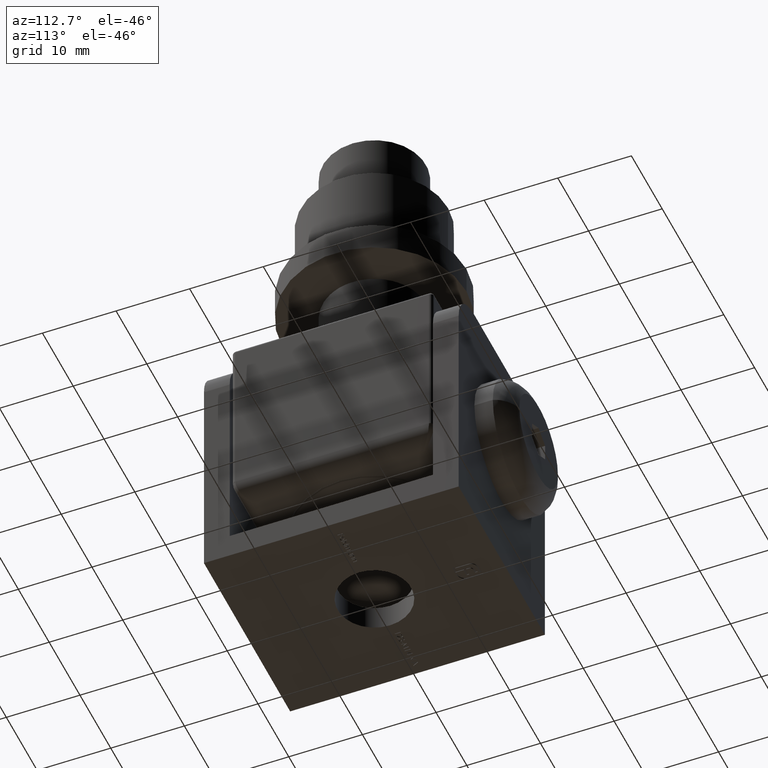
[diagram: clean part render]
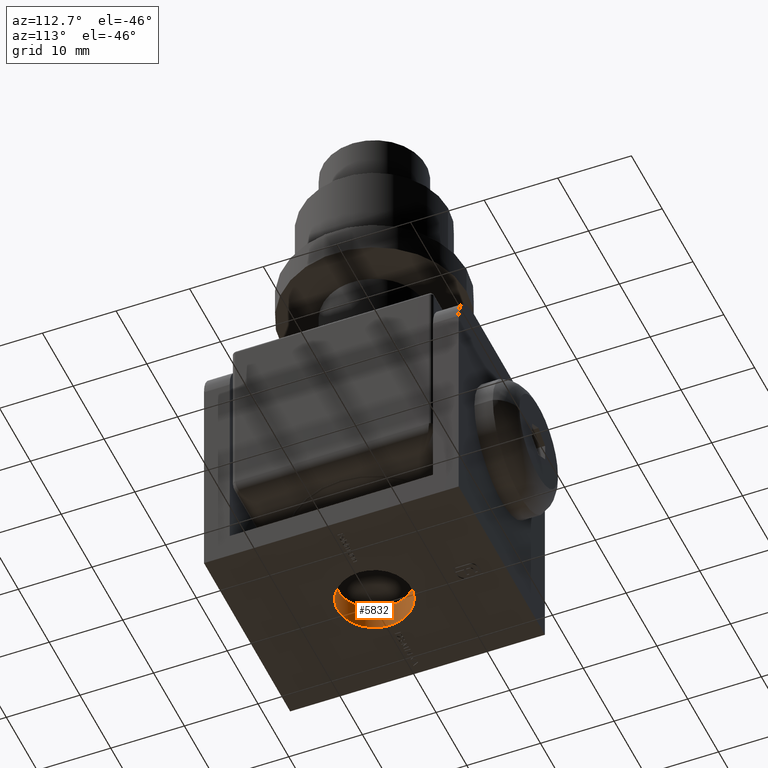
[diagram: same view with one face highlighted and labeled with its STEP entity id]
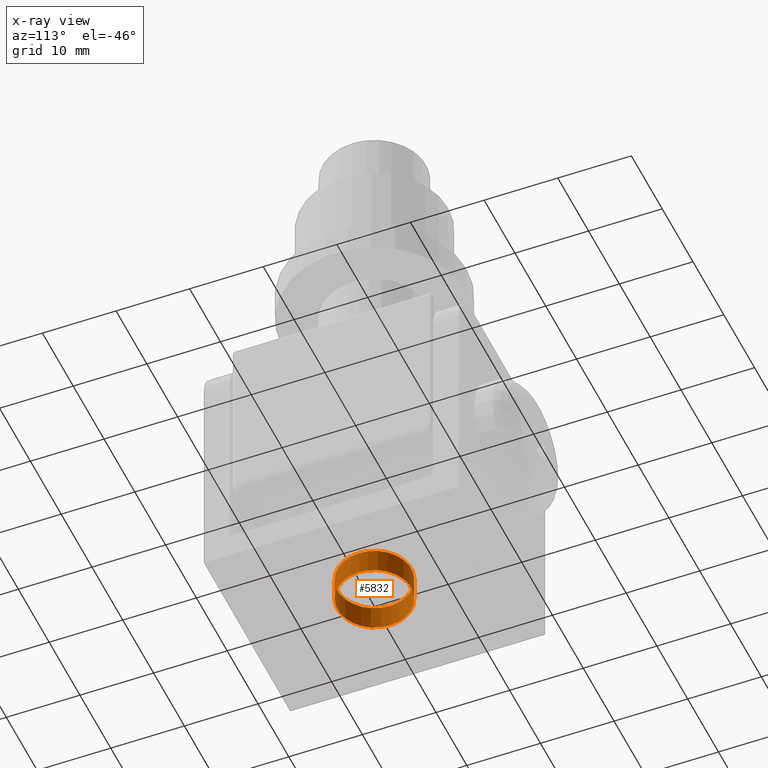
[diagram: x-ray of the same camera — body ghosted, the highlighted face saturated]
A machine part, auxiliary view. The second image highlights one B-rep face of the part: STEP entity #5832.
The next image is the same camera in x-ray: the body ghosted, the highlighted face saturated — about 0% of this face is hidden behind the body in this view.
In plain terms, the highlighted cylindrical surface (bore or boss wall) has radius 5 mm, axis along (0, 0, 1).
Its self-contained STEP definition (entity closure, byte-faithful):
#82 = FACE_OUTER_BOUND ( 'NONE', #4609, .T. ) ;
#257 = FACE_OUTER_BOUND ( 'NONE', #7663, .T. ) ;
#327 = VERTEX_POINT ( 'NONE', #13032 ) ;
#437 = CARTESIAN_POINT ( 'NONE',  ( 0.000000000000000000, 0.000000000000000000, -14.39999999999998970 ) ) ;
#508 = CIRCLE ( 'NONE', #1326, 4.999999999999997335 ) ;
#806 = AXIS2_PLACEMENT_3D ( 'NONE', #7614, #9944, #6572 ) ;
#1326 = AXIS2_PLACEMENT_3D ( 'NONE', #437, #6108, #5117 ) ;
#2140 = VERTEX_POINT ( 'NONE', #13188 ) ;
#2665 = ORIENTED_EDGE ( 'NONE', *, *, #7096, .T. ) ;
#3645 = DIRECTION ( 'NONE',  ( 1.000000000000000000, 0.000000000000000000, 0.000000000000000000 ) ) ;
#4084 = CIRCLE ( 'NONE', #8729, 4.999999999999997335 ) ;
#4356 = ORIENTED_EDGE ( 'NONE', *, *, #9036, .F. ) ;
#4609 = EDGE_LOOP ( 'NONE', ( #2665 ) ) ;
#5117 = DIRECTION ( 'NONE',  ( 1.000000000000000000, 0.000000000000000000, 0.000000000000000000 ) ) ;
#5832 = ADVANCED_FACE ( 'NONE', ( #257, #82 ), #9154, .F. ) ;
#6108 = DIRECTION ( 'NONE',  ( 0.000000000000000000, 0.000000000000000000, 1.000000000000000000 ) ) ;
#6572 = DIRECTION ( 'NONE',  ( 1.000000000000000000, 0.000000000000000000, 0.000000000000000000 ) ) ;
#7096 = EDGE_CURVE ( 'NONE', #327, #327, #508, .T. ) ;
#7614 = CARTESIAN_POINT ( 'NONE',  ( 0.000000000000000000, 0.000000000000000000, -17.90000000000000568 ) ) ;
#7663 = EDGE_LOOP ( 'NONE', ( #4356 ) ) ;
#8729 = AXIS2_PLACEMENT_3D ( 'NONE', #14232, #10566, #3645 ) ;
#9036 = EDGE_CURVE ( 'NONE', #2140, #2140, #4084, .T. ) ;
#9154 = CYLINDRICAL_SURFACE ( 'NONE', #806, 4.999999999999997335 ) ;
#9944 = DIRECTION ( 'NONE',  ( -0.000000000000000000, -0.000000000000000000, 1.000000000000000000 ) ) ;
#10566 = DIRECTION ( 'NONE',  ( 0.000000000000000000, 0.000000000000000000, 1.000000000000000000 ) ) ;
#13032 = CARTESIAN_POINT ( 'NONE',  ( 4.999999999999997335, 0.000000000000000000, -14.39999999999998970 ) ) ;
#13188 = CARTESIAN_POINT ( 'NONE',  ( 4.999999999999997335, 0.000000000000000000, -17.90000000000000568 ) ) ;
#14232 = CARTESIAN_POINT ( 'NONE',  ( 0.000000000000000000, 0.000000000000000000, -17.90000000000000568 ) ) ;